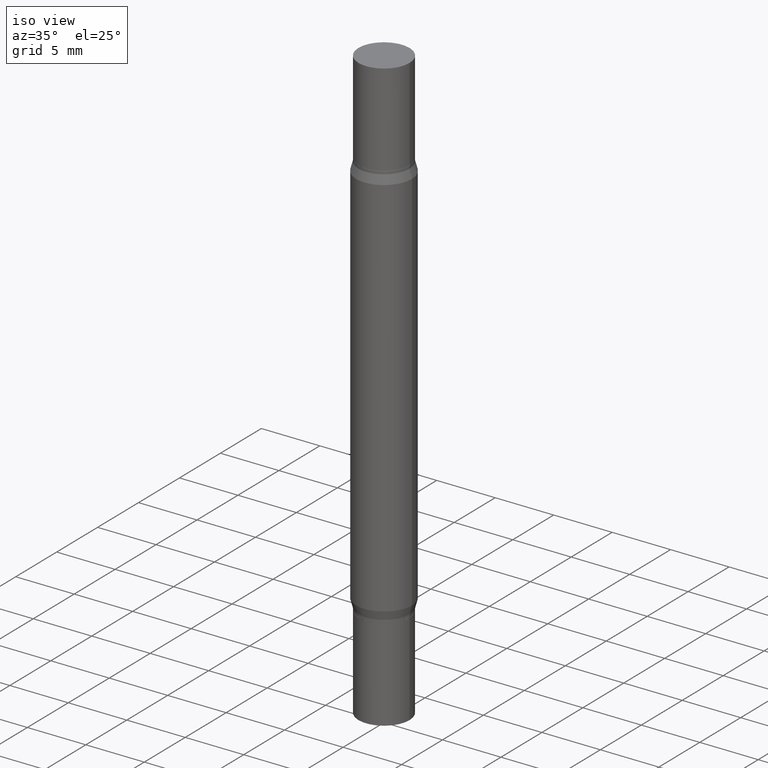
[diagram: clean part render]
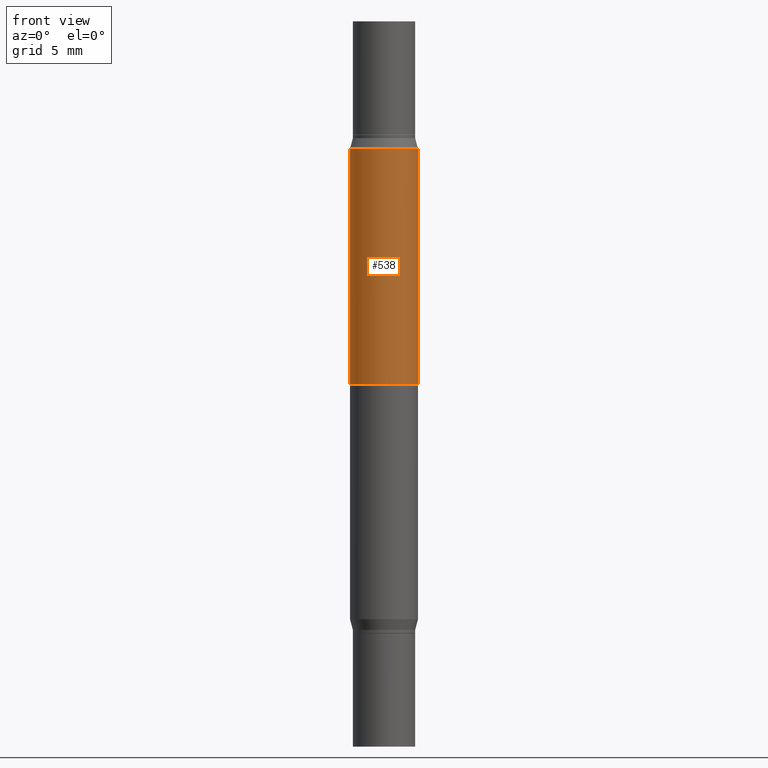
[diagram: tour spotlight — one face highlighted and labeled with its STEP entity id]
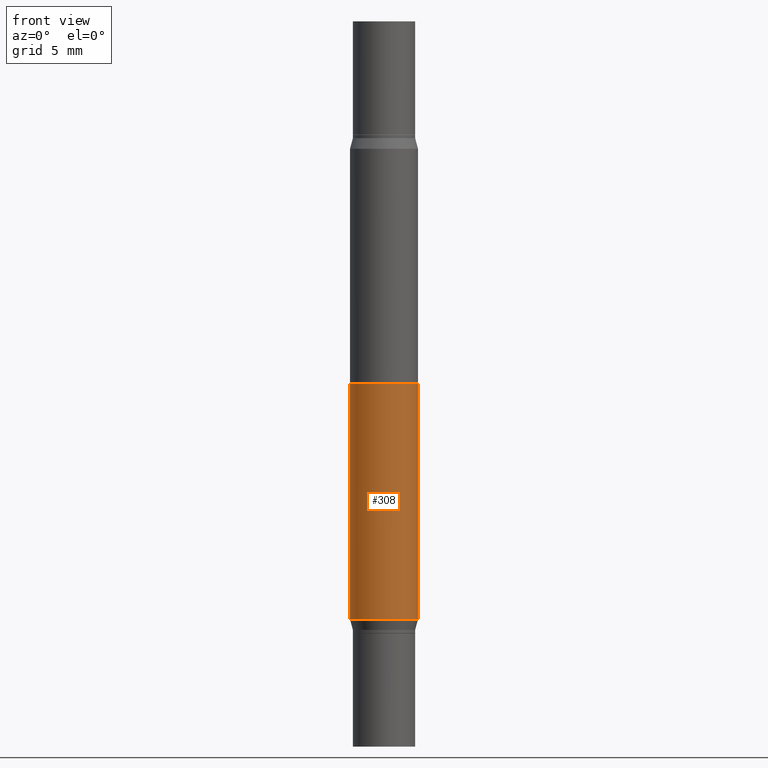
[diagram: tour spotlight — one face highlighted and labeled with its STEP entity id]
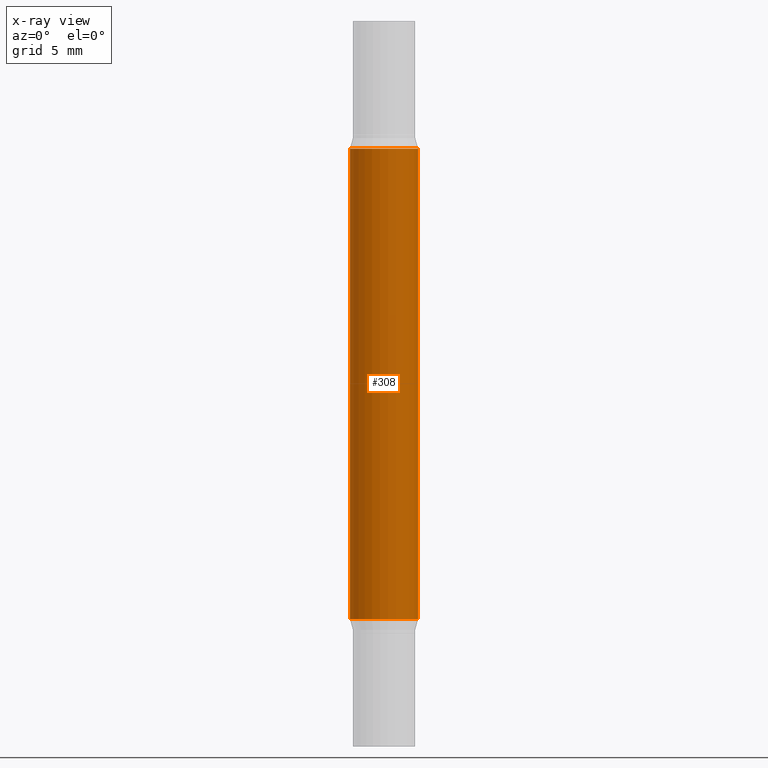
[diagram: x-ray of the same camera — body ghosted, this tour face saturated]
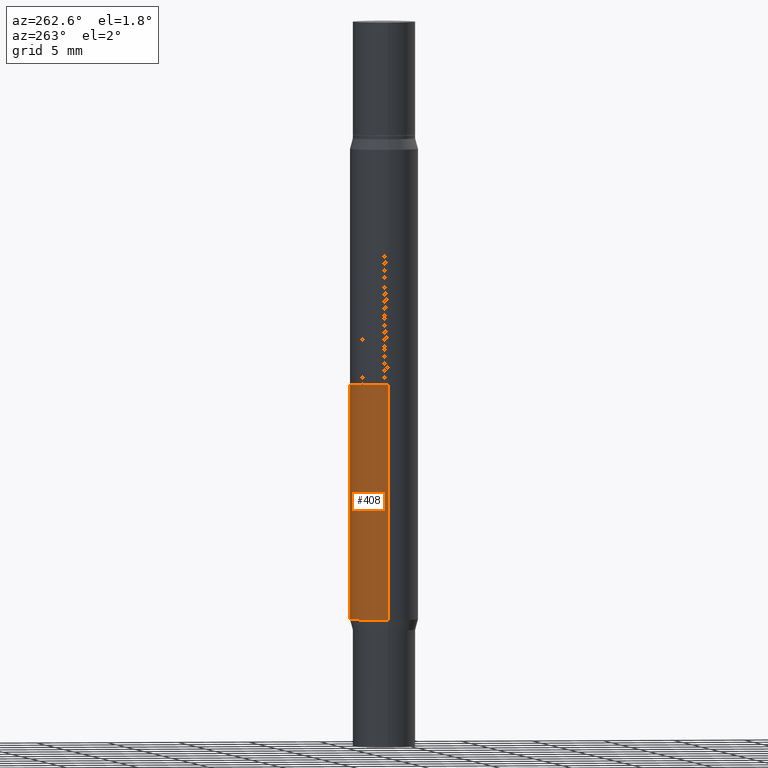
[diagram: tour spotlight — one face highlighted and labeled with its STEP entity id]
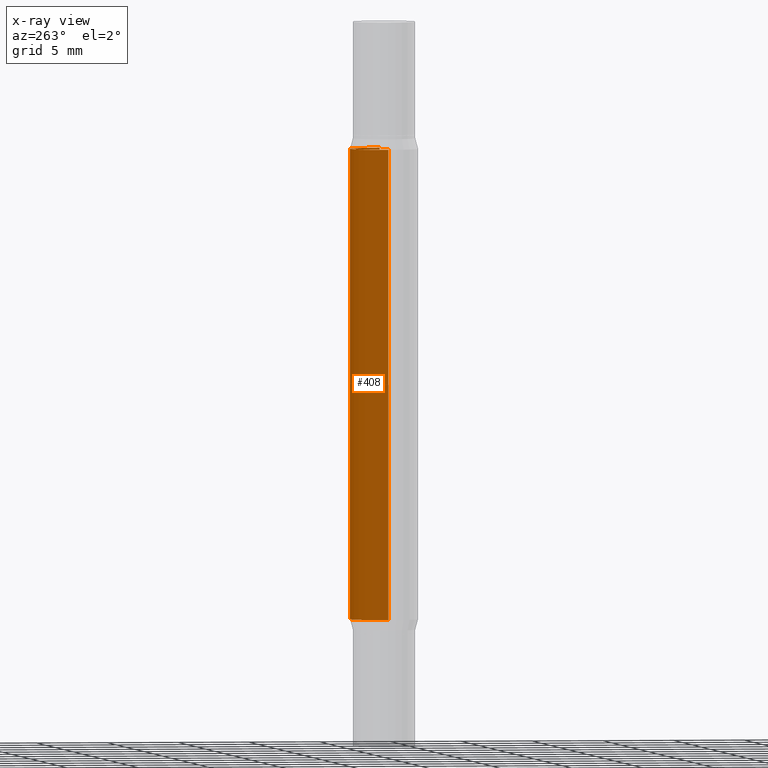
[diagram: x-ray of the same camera — body ghosted, this tour face saturated]
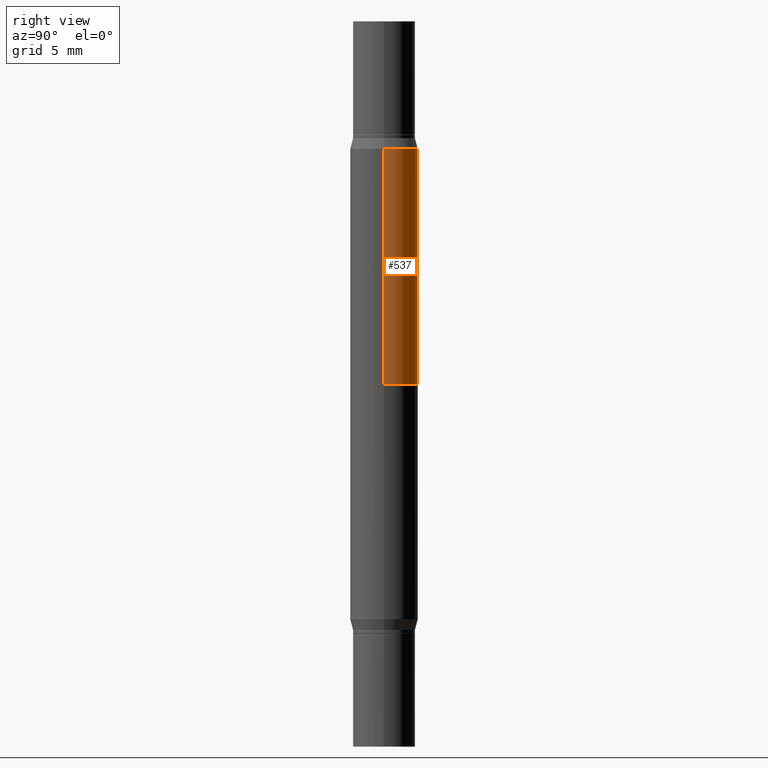
[diagram: tour spotlight — one face highlighted and labeled with its STEP entity id]
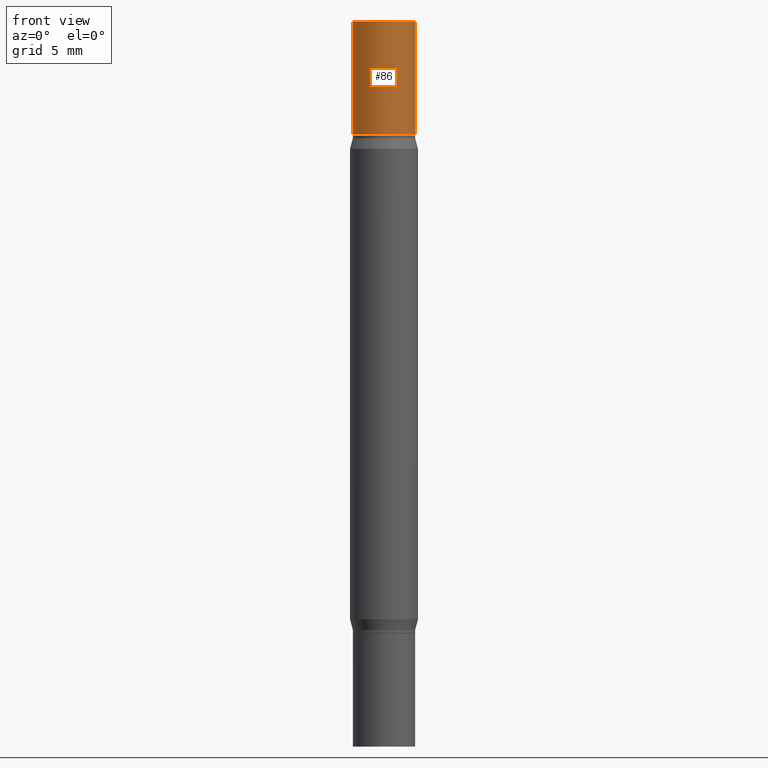
[diagram: tour spotlight — one face highlighted and labeled with its STEP entity id]
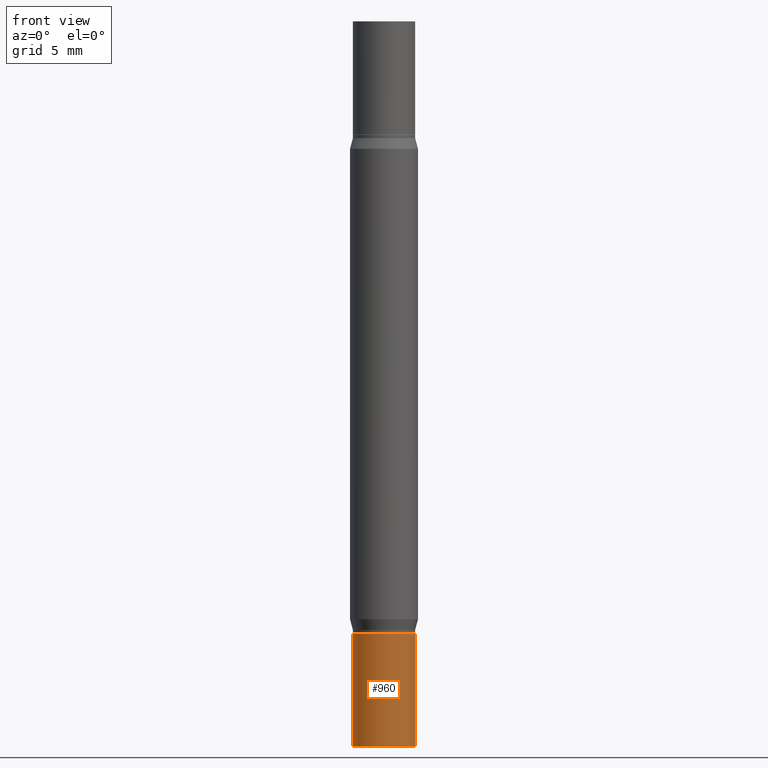
[diagram: tour spotlight — one face highlighted and labeled with its STEP entity id]
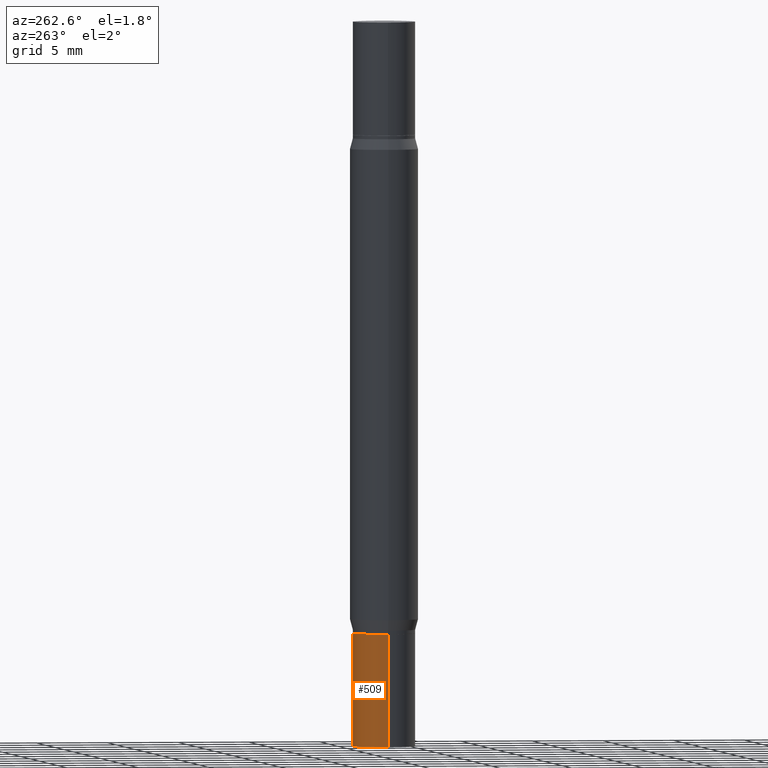
[diagram: tour spotlight — one face highlighted and labeled with its STEP entity id]
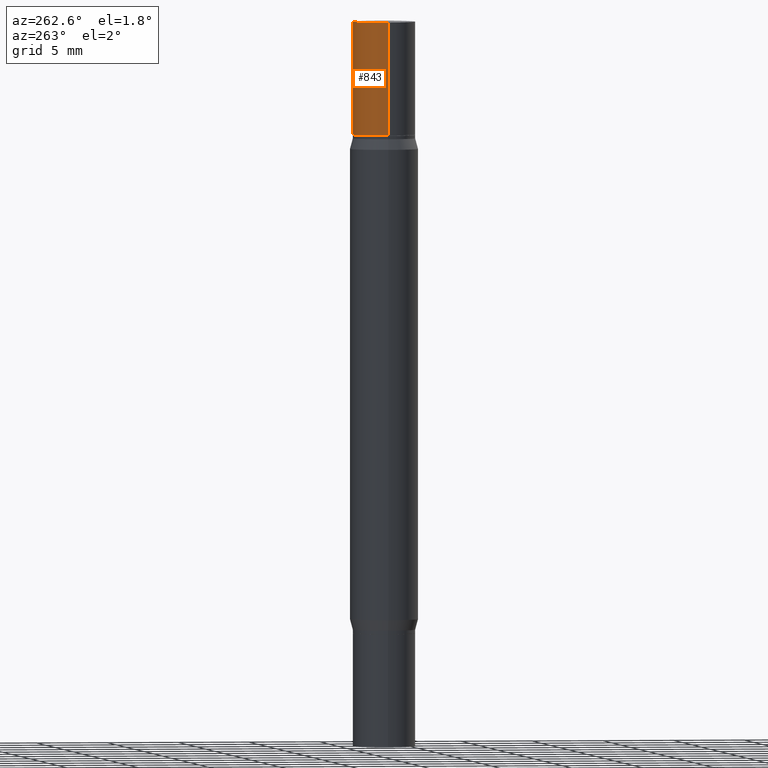
[diagram: tour spotlight — one face highlighted and labeled with its STEP entity id]
A machine part: a face-by-face anatomy tour. The part has 38 B-rep faces; the first image is the clean iso view, then the 8 largest visible faces are spotlighted one at a time (largest first), each with its STEP entity span.

Face 1 — front view, entity #538. In plain terms, the highlighted cylindrical surface (edge-blend (fillet) strip) has radius 2.3812 mm, axis along (-0, -0, -1).
Definition (entity closure, byte-faithful):
#9 = DIRECTION ( 'NONE',  ( 2.445468806185136597E-29, 3.491805094961124077E-15, 1.000000000000000000 ) ) ;
#27 = CYLINDRICAL_SURFACE ( 'NONE', #239, 0.09374999999999998612 ) ;
#81 = AXIS2_PLACEMENT_3D ( 'NONE', #282, #355, #948 ) ;
#85 = CARTESIAN_POINT ( 'NONE',  ( 4.032309068881200734E-29, -1.225683917850777370E-15, -0.3511099962990362200 ) ) ;
#99 = DIRECTION ( 'NONE',  ( -2.445468806185136597E-29, -3.491805094961124077E-15, -1.000000000000000000 ) ) ;
#106 = ORIENTED_EDGE ( 'NONE', *, *, #358, .F. ) ;
#160 = LINE ( 'NONE', #846, #919 ) ;
#174 = VERTEX_POINT ( 'NONE', #463 ) ;
#183 = VERTEX_POINT ( 'NONE', #312 ) ;
#234 = ORIENTED_EDGE ( 'NONE', *, *, #682, .F. ) ;
#239 = AXIS2_PLACEMENT_3D ( 'NONE', #701, #99, #611 ) ;
#263 = VERTEX_POINT ( 'NONE', #346 ) ;
#282 = CARTESIAN_POINT ( 'NONE',  ( 2.445468806185136317E-29, -3.491481338843145188E-15, -0.9999999999999998890 ) ) ;
#306 = AXIS2_PLACEMENT_3D ( 'NONE', #85, #9, #925 ) ;
#312 = CARTESIAN_POINT ( 'NONE',  ( 0.09374999999999998612, -3.013235379380048882E-15, -0.9999999999999998890 ) ) ;
#314 = DIRECTION ( 'NONE',  ( -2.445468806185136877E-29, -3.491805094961123683E-15, -1.000000000000000000 ) ) ;
#317 = DIRECTION ( 'NONE',  ( -2.445468806185136877E-29, -3.491805094961123683E-15, -1.000000000000000000 ) ) ;
#346 = CARTESIAN_POINT ( 'NONE',  ( -0.09374999999999998612, -1.715410941055880491E-15, -0.9999999999999998890 ) ) ;
#355 = DIRECTION ( 'NONE',  ( -0.000000000000000000, -3.491643216902134830E-15, -1.000000000000000000 ) ) ;
#358 = EDGE_CURVE ( 'NONE', #183, #263, #825, .T. ) ;
#463 = CARTESIAN_POINT ( 'NONE',  ( 0.09374999999999998612, -1.880336668883865465E-15, -0.3511099962990362200 ) ) ;
#527 = LINE ( 'NONE', #832, #628 ) ;
#538 = ADVANCED_FACE ( 'NONE', ( #685 ), #27, .T. ) ;
#565 = EDGE_LOOP ( 'NONE', ( #922, #576, #106, #234 ) ) ;
#576 = ORIENTED_EDGE ( 'NONE', *, *, #617, .T. ) ;
#611 = DIRECTION ( 'NONE',  ( 1.000000000000000000, -6.982962677686263555E-15, 0.000000000000000000 ) ) ;
#617 = EDGE_CURVE ( 'NONE', #941, #263, #527, .T. ) ;
#628 = VECTOR ( 'NONE', #317, 39.37007874015748143 ) ;
#640 = EDGE_CURVE ( 'NONE', #941, #174, #715, .T. ) ;
#682 = EDGE_CURVE ( 'NONE', #174, #183, #160, .T. ) ;
#685 = FACE_OUTER_BOUND ( 'NONE', #565, .T. ) ;
#701 = CARTESIAN_POINT ( 'NONE',  ( 0.000000000000000000, -6.983286433804268871E-15, -1.999999999999999778 ) ) ;
#715 = CIRCLE ( 'NONE', #306, 0.09374999999999998612 ) ;
#825 = CIRCLE ( 'NONE', #81, 0.09374999999999998612 ) ;
#829 = CARTESIAN_POINT ( 'NONE',  ( -0.09374999999999998612, -5.825122305596969759E-16, -0.3511099962990362200 ) ) ;
#832 = CARTESIAN_POINT ( 'NONE',  ( -0.09374999999999998612, -6.340114746513187787E-15, -1.999999999999999778 ) ) ;
#846 = CARTESIAN_POINT ( 'NONE',  ( 0.09374999999999998612, -7.637939184837356375E-15, -1.999999999999999778 ) ) ;
#919 = VECTOR ( 'NONE', #314, 39.37007874015748143 ) ;
#922 = ORIENTED_EDGE ( 'NONE', *, *, #640, .F. ) ;
#925 = DIRECTION ( 'NONE',  ( 1.000000000000000000, -6.982962677686266711E-15, 0.000000000000000000 ) ) ;
#941 = VERTEX_POINT ( 'NONE', #829 ) ;
#948 = DIRECTION ( 'NONE',  ( 0.000000000000000000, 1.000000000000000000, -2.913971193241881161E-15 ) ) ;

Face 2 — front view, entity #308. An x-ray twin of the same camera follows (body ghosted, this face saturated) — the face is partly hidden behind the body. In plain terms, the highlighted cylindrical surface (edge-blend (fillet) strip) has radius 2.3812 mm, axis along (-0, -0, -1).
Definition (entity closure, byte-faithful):
#38 = ORIENTED_EDGE ( 'NONE', *, *, #248, .F. ) ;
#40 = CYLINDRICAL_SURFACE ( 'NONE', #131, 0.09374999999999998612 ) ;
#131 = AXIS2_PLACEMENT_3D ( 'NONE', #630, #780, #185 ) ;
#146 = CIRCLE ( 'NONE', #273, 0.09374999999999998612 ) ;
#153 = EDGE_CURVE ( 'NONE', #870, #467, #503, .T. ) ;
#170 = LINE ( 'NONE', #605, #746 ) ;
#185 = DIRECTION ( 'NONE',  ( 1.000000000000000000, -6.982962677686263555E-15, 0.000000000000000000 ) ) ;
#200 = DIRECTION ( 'NONE',  ( 2.445468806185136597E-29, 3.491805094961124077E-15, 1.000000000000000000 ) ) ;
#213 = VERTEX_POINT ( 'NONE', #803 ) ;
#214 = LINE ( 'NONE', #588, #290 ) ;
#248 = EDGE_CURVE ( 'NONE', #855, #213, #146, .T. ) ;
#273 = AXIS2_PLACEMENT_3D ( 'NONE', #637, #200, #499 ) ;
#288 = ORIENTED_EDGE ( 'NONE', *, *, #683, .T. ) ;
#290 = VECTOR ( 'NONE', #819, 39.37007874015748143 ) ;
#308 = ADVANCED_FACE ( 'NONE', ( #577 ), #40, .T. ) ;
#410 = CARTESIAN_POINT ( 'NONE',  ( -0.09374999999999998612, -5.825122305596969759E-16, -0.3511099962990362200 ) ) ;
#467 = VERTEX_POINT ( 'NONE', #752 ) ;
#480 = EDGE_CURVE ( 'NONE', #213, #467, #214, .T. ) ;
#494 = ORIENTED_EDGE ( 'NONE', *, *, #480, .F. ) ;
#499 = DIRECTION ( 'NONE',  ( 1.000000000000000000, -6.982962677686266711E-15, 0.000000000000000000 ) ) ;
#503 = CIRCLE ( 'NONE', #823, 0.09374999999999998612 ) ;
#573 = CARTESIAN_POINT ( 'NONE',  ( 4.032309068881200734E-29, -5.757068677726919122E-15, -1.648890003700963502 ) ) ;
#577 = FACE_OUTER_BOUND ( 'NONE', #767, .T. ) ;
#588 = CARTESIAN_POINT ( 'NONE',  ( 0.09374999999999998612, -7.637939184837356375E-15, -1.999999999999999778 ) ) ;
#605 = CARTESIAN_POINT ( 'NONE',  ( -0.09374999999999998612, -6.340114746513187787E-15, -1.999999999999999778 ) ) ;
#630 = CARTESIAN_POINT ( 'NONE',  ( 0.000000000000000000, -6.983286433804268871E-15, -1.999999999999999778 ) ) ;
#637 = CARTESIAN_POINT ( 'NONE',  ( 4.032309068881200734E-29, -1.225683917850777370E-15, -0.3511099962990362200 ) ) ;
#657 = ORIENTED_EDGE ( 'NONE', *, *, #153, .T. ) ;
#683 = EDGE_CURVE ( 'NONE', #855, #870, #170, .T. ) ;
#699 = DIRECTION ( 'NONE',  ( 1.000000000000000000, -6.982962677686263555E-15, 0.000000000000000000 ) ) ;
#746 = VECTOR ( 'NONE', #916, 39.37007874015748143 ) ;
#752 = CARTESIAN_POINT ( 'NONE',  ( 0.09374999999999998612, -6.411721428760006626E-15, -1.648890003700963502 ) ) ;
#767 = EDGE_LOOP ( 'NONE', ( #38, #288, #657, #494 ) ) ;
#780 = DIRECTION ( 'NONE',  ( -2.445468806185136597E-29, -3.491805094961124077E-15, -1.000000000000000000 ) ) ;
#803 = CARTESIAN_POINT ( 'NONE',  ( 0.09374999999999998612, -1.880336668883865465E-15, -0.3511099962990362200 ) ) ;
#819 = DIRECTION ( 'NONE',  ( -2.445468806185136877E-29, -3.491805094961123683E-15, -1.000000000000000000 ) ) ;
#823 = AXIS2_PLACEMENT_3D ( 'NONE', #573, #879, #699 ) ;
#855 = VERTEX_POINT ( 'NONE', #410 ) ;
#870 = VERTEX_POINT ( 'NONE', #890 ) ;
#879 = DIRECTION ( 'NONE',  ( -2.445468806185136597E-29, 3.491481338843145583E-15, 1.000000000000000000 ) ) ;
#890 = CARTESIAN_POINT ( 'NONE',  ( -0.09374999999999998612, -2.848309651552064499E-15, -1.648890003700963502 ) ) ;
#916 = DIRECTION ( 'NONE',  ( -2.445468806185136877E-29, -3.491805094961123683E-15, -1.000000000000000000 ) ) ;

Face 3 — auxiliary view, entity #408. An x-ray twin of the same camera follows (body ghosted, this face saturated) — the face is partly hidden behind the body. In plain terms, the highlighted cylindrical surface (edge-blend (fillet) strip) has radius 2.3812 mm, axis along (-0, -0, -1).
Definition (entity closure, byte-faithful):
#24 = ORIENTED_EDGE ( 'NONE', *, *, #480, .T. ) ;
#62 = EDGE_LOOP ( 'NONE', ( #130, #740, #24, #295 ) ) ;
#63 = CARTESIAN_POINT ( 'NONE',  ( 0.000000000000000000, -6.983286433804268871E-15, -1.999999999999999778 ) ) ;
#93 = AXIS2_PLACEMENT_3D ( 'NONE', #722, #727, #514 ) ;
#130 = ORIENTED_EDGE ( 'NONE', *, *, #683, .F. ) ;
#142 = DIRECTION ( 'NONE',  ( 2.445468806185136597E-29, 3.491805094961124077E-15, 1.000000000000000000 ) ) ;
#161 = CIRCLE ( 'NONE', #471, 0.09374999999999998612 ) ;
#170 = LINE ( 'NONE', #605, #746 ) ;
#213 = VERTEX_POINT ( 'NONE', #803 ) ;
#214 = LINE ( 'NONE', #588, #290 ) ;
#254 = AXIS2_PLACEMENT_3D ( 'NONE', #63, #581, #658 ) ;
#290 = VECTOR ( 'NONE', #819, 39.37007874015748143 ) ;
#294 = DIRECTION ( 'NONE',  ( 1.000000000000000000, -6.982962677686266711E-15, 0.000000000000000000 ) ) ;
#295 = ORIENTED_EDGE ( 'NONE', *, *, #858, .T. ) ;
#408 = ADVANCED_FACE ( 'NONE', ( #891 ), #600, .T. ) ;
#410 = CARTESIAN_POINT ( 'NONE',  ( -0.09374999999999998612, -5.825122305596969759E-16, -0.3511099962990362200 ) ) ;
#466 = EDGE_CURVE ( 'NONE', #213, #855, #161, .T. ) ;
#467 = VERTEX_POINT ( 'NONE', #752 ) ;
#471 = AXIS2_PLACEMENT_3D ( 'NONE', #966, #142, #294 ) ;
#480 = EDGE_CURVE ( 'NONE', #213, #467, #214, .T. ) ;
#514 = DIRECTION ( 'NONE',  ( 1.000000000000000000, -6.982962677686263555E-15, 0.000000000000000000 ) ) ;
#520 = CIRCLE ( 'NONE', #93, 0.09374999999999998612 ) ;
#581 = DIRECTION ( 'NONE',  ( -2.445468806185136597E-29, -3.491805094961124077E-15, -1.000000000000000000 ) ) ;
#588 = CARTESIAN_POINT ( 'NONE',  ( 0.09374999999999998612, -7.637939184837356375E-15, -1.999999999999999778 ) ) ;
#600 = CYLINDRICAL_SURFACE ( 'NONE', #254, 0.09374999999999998612 ) ;
#605 = CARTESIAN_POINT ( 'NONE',  ( -0.09374999999999998612, -6.340114746513187787E-15, -1.999999999999999778 ) ) ;
#658 = DIRECTION ( 'NONE',  ( 1.000000000000000000, -6.982962677686263555E-15, 0.000000000000000000 ) ) ;
#683 = EDGE_CURVE ( 'NONE', #855, #870, #170, .T. ) ;
#722 = CARTESIAN_POINT ( 'NONE',  ( 4.032309068881200734E-29, -5.757068677726919122E-15, -1.648890003700963502 ) ) ;
#727 = DIRECTION ( 'NONE',  ( -2.445468806185136597E-29, 3.491481338843145583E-15, 1.000000000000000000 ) ) ;
#740 = ORIENTED_EDGE ( 'NONE', *, *, #466, .F. ) ;
#746 = VECTOR ( 'NONE', #916, 39.37007874015748143 ) ;
#752 = CARTESIAN_POINT ( 'NONE',  ( 0.09374999999999998612, -6.411721428760006626E-15, -1.648890003700963502 ) ) ;
#803 = CARTESIAN_POINT ( 'NONE',  ( 0.09374999999999998612, -1.880336668883865465E-15, -0.3511099962990362200 ) ) ;
#819 = DIRECTION ( 'NONE',  ( -2.445468806185136877E-29, -3.491805094961123683E-15, -1.000000000000000000 ) ) ;
#855 = VERTEX_POINT ( 'NONE', #410 ) ;
#858 = EDGE_CURVE ( 'NONE', #467, #870, #520, .T. ) ;
#870 = VERTEX_POINT ( 'NONE', #890 ) ;
#890 = CARTESIAN_POINT ( 'NONE',  ( -0.09374999999999998612, -2.848309651552064499E-15, -1.648890003700963502 ) ) ;
#891 = FACE_OUTER_BOUND ( 'NONE', #62, .T. ) ;
#916 = DIRECTION ( 'NONE',  ( -2.445468806185136877E-29, -3.491805094961123683E-15, -1.000000000000000000 ) ) ;
#966 = CARTESIAN_POINT ( 'NONE',  ( 4.032309068881200734E-29, -1.225683917850777370E-15, -0.3511099962990362200 ) ) ;

Face 4 — right view, entity #537. In plain terms, the highlighted cylindrical surface (edge-blend (fillet) strip) has radius 2.3812 mm, axis along (-0, -0, -1).
Definition (entity closure, byte-faithful):
#50 = EDGE_CURVE ( 'NONE', #263, #183, #469, .T. ) ;
#90 = DIRECTION ( 'NONE',  ( 1.000000000000000000, -6.982962677686263555E-15, 0.000000000000000000 ) ) ;
#116 = ORIENTED_EDGE ( 'NONE', *, *, #682, .T. ) ;
#157 = DIRECTION ( 'NONE',  ( -2.445468806185136597E-29, -3.491805094961124077E-15, -1.000000000000000000 ) ) ;
#160 = LINE ( 'NONE', #846, #919 ) ;
#169 = ORIENTED_EDGE ( 'NONE', *, *, #574, .F. ) ;
#174 = VERTEX_POINT ( 'NONE', #463 ) ;
#183 = VERTEX_POINT ( 'NONE', #312 ) ;
#201 = ORIENTED_EDGE ( 'NONE', *, *, #50, .F. ) ;
#263 = VERTEX_POINT ( 'NONE', #346 ) ;
#304 = CIRCLE ( 'NONE', #792, 0.09374999999999998612 ) ;
#312 = CARTESIAN_POINT ( 'NONE',  ( 0.09374999999999998612, -3.013235379380048882E-15, -0.9999999999999998890 ) ) ;
#314 = DIRECTION ( 'NONE',  ( -2.445468806185136877E-29, -3.491805094961123683E-15, -1.000000000000000000 ) ) ;
#317 = DIRECTION ( 'NONE',  ( -2.445468806185136877E-29, -3.491805094961123683E-15, -1.000000000000000000 ) ) ;
#327 = ORIENTED_EDGE ( 'NONE', *, *, #617, .F. ) ;
#330 = CARTESIAN_POINT ( 'NONE',  ( 4.032309068881200734E-29, -1.225683917850777370E-15, -0.3511099962990362200 ) ) ;
#346 = CARTESIAN_POINT ( 'NONE',  ( -0.09374999999999998612, -1.715410941055880491E-15, -0.9999999999999998890 ) ) ;
#402 = CYLINDRICAL_SURFACE ( 'NONE', #449, 0.09374999999999998612 ) ;
#403 = DIRECTION ( 'NONE',  ( 0.000000000000000000, 1.000000000000000000, -2.913971193241881161E-15 ) ) ;
#449 = AXIS2_PLACEMENT_3D ( 'NONE', #834, #157, #90 ) ;
#463 = CARTESIAN_POINT ( 'NONE',  ( 0.09374999999999998612, -1.880336668883865465E-15, -0.3511099962990362200 ) ) ;
#469 = CIRCLE ( 'NONE', #693, 0.09374999999999998612 ) ;
#527 = LINE ( 'NONE', #832, #628 ) ;
#537 = ADVANCED_FACE ( 'NONE', ( #773 ), #402, .T. ) ;
#574 = EDGE_CURVE ( 'NONE', #174, #941, #304, .T. ) ;
#617 = EDGE_CURVE ( 'NONE', #941, #263, #527, .T. ) ;
#628 = VECTOR ( 'NONE', #317, 39.37007874015748143 ) ;
#633 = DIRECTION ( 'NONE',  ( -0.000000000000000000, -3.491643216902134830E-15, -1.000000000000000000 ) ) ;
#682 = EDGE_CURVE ( 'NONE', #174, #183, #160, .T. ) ;
#693 = AXIS2_PLACEMENT_3D ( 'NONE', #847, #633, #403 ) ;
#773 = FACE_OUTER_BOUND ( 'NONE', #775, .T. ) ;
#775 = EDGE_LOOP ( 'NONE', ( #327, #169, #116, #201 ) ) ;
#792 = AXIS2_PLACEMENT_3D ( 'NONE', #330, #906, #920 ) ;
#829 = CARTESIAN_POINT ( 'NONE',  ( -0.09374999999999998612, -5.825122305596969759E-16, -0.3511099962990362200 ) ) ;
#832 = CARTESIAN_POINT ( 'NONE',  ( -0.09374999999999998612, -6.340114746513187787E-15, -1.999999999999999778 ) ) ;
#834 = CARTESIAN_POINT ( 'NONE',  ( 0.000000000000000000, -6.983286433804268871E-15, -1.999999999999999778 ) ) ;
#846 = CARTESIAN_POINT ( 'NONE',  ( 0.09374999999999998612, -7.637939184837356375E-15, -1.999999999999999778 ) ) ;
#847 = CARTESIAN_POINT ( 'NONE',  ( 2.445468806185136317E-29, -3.491481338843145188E-15, -0.9999999999999998890 ) ) ;
#906 = DIRECTION ( 'NONE',  ( 2.445468806185136597E-29, 3.491805094961124077E-15, 1.000000000000000000 ) ) ;
#919 = VECTOR ( 'NONE', #314, 39.37007874015748143 ) ;
#920 = DIRECTION ( 'NONE',  ( 1.000000000000000000, -6.982962677686266711E-15, 0.000000000000000000 ) ) ;
#941 = VERTEX_POINT ( 'NONE', #829 ) ;

Face 5 — front view, entity #86. In plain terms, the highlighted cylindrical surface (edge-blend (fillet) strip) has radius 2.1831 mm, axis along (-0, -0, -1).
Definition (entity closure, byte-faithful):
#25 = DIRECTION ( 'NONE',  ( 1.000000000000000000, -6.982962677686261977E-15, 0.000000000000000000 ) ) ;
#26 = VERTEX_POINT ( 'NONE', #776 ) ;
#42 = DIRECTION ( 'NONE',  ( 2.445468806185136597E-29, 3.491805094961124077E-15, 1.000000000000000000 ) ) ;
#44 = CARTESIAN_POINT ( 'NONE',  ( -0.08594999999999998475, 4.526196421250688572E-17, 2.731847993664282447E-16 ) ) ;
#82 = CIRCLE ( 'NONE', #491, 0.08594999999999998475 ) ;
#86 = ADVANCED_FACE ( 'NONE', ( #249 ), #323, .T. ) ;
#96 = DIRECTION ( 'NONE',  ( -2.445468806185136597E-29, -3.491805094961124077E-15, -1.000000000000000000 ) ) ;
#110 = AXIS2_PLACEMENT_3D ( 'NONE', #430, #786, #875 ) ;
#111 = DIRECTION ( 'NONE',  ( -2.445468806185136877E-29, -3.491805094961123683E-15, -1.000000000000000000 ) ) ;
#128 = CARTESIAN_POINT ( 'NONE',  ( -0.08594999999999998475, 4.526196421250688572E-17, -0.3119999999999995555 ) ) ;
#135 = ORIENTED_EDGE ( 'NONE', *, *, #717, .T. ) ;
#138 = EDGE_CURVE ( 'NONE', #280, #796, #281, .T. ) ;
#180 = DIRECTION ( 'NONE',  ( 1.000000000000000000, -6.982962677686268288E-15, 0.000000000000000000 ) ) ;
#189 = EDGE_CURVE ( 'NONE', #215, #26, #692, .T. ) ;
#196 = CARTESIAN_POINT ( 'NONE',  ( -0.08594999999999998475, -6.393626630895806321E-15, -1.999999999999999778 ) ) ;
#198 = CARTESIAN_POINT ( 'NONE',  ( 0.08594999999999998475, -5.998618860291546470E-16, 2.731847993664263218E-16 ) ) ;
#215 = VERTEX_POINT ( 'NONE', #198 ) ;
#220 = CIRCLE ( 'NONE', #110, 0.08594999999999998475 ) ;
#247 = EDGE_CURVE ( 'NONE', #280, #215, #220, .T. ) ;
#249 = FACE_OUTER_BOUND ( 'NONE', #483, .T. ) ;
#280 = VERTEX_POINT ( 'NONE', #44 ) ;
#281 = LINE ( 'NONE', #196, #411 ) ;
#293 = ORIENTED_EDGE ( 'NONE', *, *, #189, .F. ) ;
#323 = CYLINDRICAL_SURFACE ( 'NONE', #790, 0.08594999999999998475 ) ;
#344 = CARTESIAN_POINT ( 'NONE',  ( 0.08594999999999998475, -7.583472075951403886E-15, -1.999999999999999778 ) ) ;
#411 = VECTOR ( 'NONE', #495, 39.37007874015748143 ) ;
#430 = CARTESIAN_POINT ( 'NONE',  ( 4.890937612370273194E-29, 3.237561179798315247E-19, 2.731847993664263218E-16 ) ) ;
#483 = EDGE_LOOP ( 'NONE', ( #896, #958, #135, #293 ) ) ;
#491 = AXIS2_PLACEMENT_3D ( 'NONE', #636, #42, #180 ) ;
#495 = DIRECTION ( 'NONE',  ( -2.445468806185136877E-29, -3.491805094961123683E-15, -1.000000000000000000 ) ) ;
#624 = VECTOR ( 'NONE', #111, 39.37007874015748143 ) ;
#636 = CARTESIAN_POINT ( 'NONE',  ( 4.127951344840510809E-29, -1.089119433509891190E-15, -0.3119999999999995555 ) ) ;
#692 = LINE ( 'NONE', #344, #624 ) ;
#717 = EDGE_CURVE ( 'NONE', #796, #26, #82, .T. ) ;
#771 = CARTESIAN_POINT ( 'NONE',  ( 0.000000000000000000, -6.983286433804268871E-15, -1.999999999999999778 ) ) ;
#776 = CARTESIAN_POINT ( 'NONE',  ( 0.08594999999999998475, -1.689305075657025811E-15, -0.3119999999999995555 ) ) ;
#786 = DIRECTION ( 'NONE',  ( 2.445468806185136597E-29, 3.491805094961124077E-15, 1.000000000000000000 ) ) ;
#790 = AXIS2_PLACEMENT_3D ( 'NONE', #771, #96, #25 ) ;
#796 = VERTEX_POINT ( 'NONE', #128 ) ;
#875 = DIRECTION ( 'NONE',  ( 1.000000000000000000, -6.982962677686266711E-15, 0.000000000000000000 ) ) ;
#896 = ORIENTED_EDGE ( 'NONE', *, *, #247, .F. ) ;
#958 = ORIENTED_EDGE ( 'NONE', *, *, #138, .T. ) ;

Face 6 — front view, entity #960. In plain terms, the highlighted cylindrical surface (edge-blend (fillet) strip) has radius 2.1831 mm, axis along (-0, 0, 1).
Definition (entity closure, byte-faithful):
#13 = CARTESIAN_POINT ( 'NONE',  ( -0.08594999999999998475, -5.827580107440954061E-15, -1.688000000000000167 ) ) ;
#21 = VERTEX_POINT ( 'NONE', #34 ) ;
#34 = CARTESIAN_POINT ( 'NONE',  ( 0.08594999999999998475, -7.583148319833424603E-15, -2.000000000000000000 ) ) ;
#36 = CIRCLE ( 'NONE', #583, 0.08594999999999998475 ) ;
#51 = VECTOR ( 'NONE', #591, 39.37007874015748143 ) ;
#58 = ORIENTED_EDGE ( 'NONE', *, *, #748, .T. ) ;
#68 = CARTESIAN_POINT ( 'NONE',  ( 4.127951344840510809E-29, -5.893620499967230340E-15, -1.688000000000000167 ) ) ;
#112 = VERTEX_POINT ( 'NONE', #13 ) ;
#125 = LINE ( 'NONE', #784, #887 ) ;
#151 = DIRECTION ( 'NONE',  ( -2.445468806185136597E-29, 3.491481338843145583E-15, 1.000000000000000000 ) ) ;
#211 = LINE ( 'NONE', #287, #51 ) ;
#219 = EDGE_CURVE ( 'NONE', #404, #21, #448, .T. ) ;
#287 = CARTESIAN_POINT ( 'NONE',  ( -0.08594999999999998475, 6.107114813858060014E-16, -4.227824710074091590E-30 ) ) ;
#301 = VERTEX_POINT ( 'NONE', #337 ) ;
#337 = CARTESIAN_POINT ( 'NONE',  ( 0.08594999999999998475, -6.493806142114363777E-15, -1.688000000000000167 ) ) ;
#354 = DIRECTION ( 'NONE',  ( -2.445468806185136597E-29, 3.491481338843145583E-15, 1.000000000000000000 ) ) ;
#371 = CARTESIAN_POINT ( 'NONE',  ( -0.08594999999999998475, -5.827580107440954061E-15, -2.000000000000000000 ) ) ;
#374 = CYLINDRICAL_SURFACE ( 'NONE', #677, 0.08594999999999998475 ) ;
#404 = VERTEX_POINT ( 'NONE', #371 ) ;
#420 = EDGE_LOOP ( 'NONE', ( #841, #427, #58, #664 ) ) ;
#423 = DIRECTION ( 'NONE',  ( -2.445468806185136877E-29, 3.491481338843145188E-15, 1.000000000000000000 ) ) ;
#427 = ORIENTED_EDGE ( 'NONE', *, *, #219, .T. ) ;
#448 = CIRCLE ( 'NONE', #835, 0.08594999999999998475 ) ;
#452 = FACE_OUTER_BOUND ( 'NONE', #420, .T. ) ;
#458 = EDGE_CURVE ( 'NONE', #112, #301, #36, .T. ) ;
#498 = EDGE_CURVE ( 'NONE', #404, #112, #211, .T. ) ;
#518 = CARTESIAN_POINT ( 'NONE',  ( 4.890937612370273194E-29, -6.982962677686291165E-15, -2.000000000000000000 ) ) ;
#583 = AXIS2_PLACEMENT_3D ( 'NONE', #68, #889, #830 ) ;
#591 = DIRECTION ( 'NONE',  ( -2.445468806185136877E-29, 3.491481338843145188E-15, 1.000000000000000000 ) ) ;
#664 = ORIENTED_EDGE ( 'NONE', *, *, #458, .F. ) ;
#677 = AXIS2_PLACEMENT_3D ( 'NONE', #751, #354, #814 ) ;
#748 = EDGE_CURVE ( 'NONE', #21, #301, #125, .T. ) ;
#751 = CARTESIAN_POINT ( 'NONE',  ( 0.000000000000000000, 0.000000000000000000, 0.000000000000000000 ) ) ;
#784 = CARTESIAN_POINT ( 'NONE',  ( 0.08594999999999998475, -6.001856421471345220E-16, 4.191073938796606539E-30 ) ) ;
#814 = DIRECTION ( 'NONE',  ( 1.000000000000000000, -6.982962677686266711E-15, 4.876176775795936353E-29 ) ) ;
#830 = DIRECTION ( 'NONE',  ( 1.000000000000000000, -6.982962677686261977E-15, 0.000000000000000000 ) ) ;
#835 = AXIS2_PLACEMENT_3D ( 'NONE', #518, #151, #903 ) ;
#841 = ORIENTED_EDGE ( 'NONE', *, *, #498, .F. ) ;
#887 = VECTOR ( 'NONE', #423, 39.37007874015748143 ) ;
#889 = DIRECTION ( 'NONE',  ( -2.445468806185136597E-29, 3.491481338843145583E-15, 1.000000000000000000 ) ) ;
#903 = DIRECTION ( 'NONE',  ( 1.000000000000000000, -6.982962677686261977E-15, 0.000000000000000000 ) ) ;
#960 = ADVANCED_FACE ( 'NONE', ( #452 ), #374, .T. ) ;

Face 7 — auxiliary view, entity #509. In plain terms, the highlighted cylindrical surface (edge-blend (fillet) strip) has radius 2.1831 mm, axis along (-0, 0, 1).
Definition (entity closure, byte-faithful):
#13 = CARTESIAN_POINT ( 'NONE',  ( -0.08594999999999998475, -5.827580107440954061E-15, -1.688000000000000167 ) ) ;
#21 = VERTEX_POINT ( 'NONE', #34 ) ;
#34 = CARTESIAN_POINT ( 'NONE',  ( 0.08594999999999998475, -7.583148319833424603E-15, -2.000000000000000000 ) ) ;
#51 = VECTOR ( 'NONE', #591, 39.37007874015748143 ) ;
#57 = CARTESIAN_POINT ( 'NONE',  ( 4.890937612370273194E-29, -6.982962677686291165E-15, -2.000000000000000000 ) ) ;
#112 = VERTEX_POINT ( 'NONE', #13 ) ;
#125 = LINE ( 'NONE', #784, #887 ) ;
#143 = FACE_OUTER_BOUND ( 'NONE', #720, .T. ) ;
#211 = LINE ( 'NONE', #287, #51 ) ;
#285 = EDGE_CURVE ( 'NONE', #301, #112, #393, .T. ) ;
#287 = CARTESIAN_POINT ( 'NONE',  ( -0.08594999999999998475, 6.107114813858060014E-16, -4.227824710074091590E-30 ) ) ;
#301 = VERTEX_POINT ( 'NONE', #337 ) ;
#337 = CARTESIAN_POINT ( 'NONE',  ( 0.08594999999999998475, -6.493806142114363777E-15, -1.688000000000000167 ) ) ;
#343 = DIRECTION ( 'NONE',  ( -2.445468806185136597E-29, 3.491481338843145583E-15, 1.000000000000000000 ) ) ;
#371 = CARTESIAN_POINT ( 'NONE',  ( -0.08594999999999998475, -5.827580107440954061E-15, -2.000000000000000000 ) ) ;
#393 = CIRCLE ( 'NONE', #949, 0.08594999999999998475 ) ;
#404 = VERTEX_POINT ( 'NONE', #371 ) ;
#423 = DIRECTION ( 'NONE',  ( -2.445468806185136877E-29, 3.491481338843145188E-15, 1.000000000000000000 ) ) ;
#426 = ORIENTED_EDGE ( 'NONE', *, *, #498, .T. ) ;
#446 = CYLINDRICAL_SURFACE ( 'NONE', #596, 0.08594999999999998475 ) ;
#473 = AXIS2_PLACEMENT_3D ( 'NONE', #57, #822, #507 ) ;
#481 = CARTESIAN_POINT ( 'NONE',  ( 4.127951344840510809E-29, -5.893620499967230340E-15, -1.688000000000000167 ) ) ;
#498 = EDGE_CURVE ( 'NONE', #404, #112, #211, .T. ) ;
#501 = ORIENTED_EDGE ( 'NONE', *, *, #285, .F. ) ;
#507 = DIRECTION ( 'NONE',  ( 1.000000000000000000, -6.982962677686261977E-15, 0.000000000000000000 ) ) ;
#509 = ADVANCED_FACE ( 'NONE', ( #143 ), #446, .T. ) ;
#515 = DIRECTION ( 'NONE',  ( -2.445468806185136597E-29, 3.491481338843145583E-15, 1.000000000000000000 ) ) ;
#587 = ORIENTED_EDGE ( 'NONE', *, *, #921, .T. ) ;
#591 = DIRECTION ( 'NONE',  ( -2.445468806185136877E-29, 3.491481338843145188E-15, 1.000000000000000000 ) ) ;
#596 = AXIS2_PLACEMENT_3D ( 'NONE', #976, #515, #824 ) ;
#720 = EDGE_LOOP ( 'NONE', ( #587, #426, #501, #860 ) ) ;
#729 = CIRCLE ( 'NONE', #473, 0.08594999999999998475 ) ;
#748 = EDGE_CURVE ( 'NONE', #21, #301, #125, .T. ) ;
#784 = CARTESIAN_POINT ( 'NONE',  ( 0.08594999999999998475, -6.001856421471345220E-16, 4.191073938796606539E-30 ) ) ;
#822 = DIRECTION ( 'NONE',  ( -2.445468806185136597E-29, 3.491481338843145583E-15, 1.000000000000000000 ) ) ;
#824 = DIRECTION ( 'NONE',  ( 1.000000000000000000, -6.982962677686266711E-15, 4.876176775795936353E-29 ) ) ;
#859 = DIRECTION ( 'NONE',  ( 1.000000000000000000, -6.982962677686261977E-15, 0.000000000000000000 ) ) ;
#860 = ORIENTED_EDGE ( 'NONE', *, *, #748, .F. ) ;
#887 = VECTOR ( 'NONE', #423, 39.37007874015748143 ) ;
#921 = EDGE_CURVE ( 'NONE', #21, #404, #729, .T. ) ;
#949 = AXIS2_PLACEMENT_3D ( 'NONE', #481, #343, #859 ) ;
#976 = CARTESIAN_POINT ( 'NONE',  ( 0.000000000000000000, 0.000000000000000000, 0.000000000000000000 ) ) ;

Face 8 — auxiliary view, entity #843. In plain terms, the highlighted cylindrical surface (edge-blend (fillet) strip) has radius 2.1831 mm, axis along (-0, -0, -1).
Definition (entity closure, byte-faithful):
#12 = DIRECTION ( 'NONE',  ( 1.000000000000000000, -6.982962677686268288E-15, 0.000000000000000000 ) ) ;
#26 = VERTEX_POINT ( 'NONE', #776 ) ;
#29 = ORIENTED_EDGE ( 'NONE', *, *, #138, .F. ) ;
#37 = CIRCLE ( 'NONE', #291, 0.08594999999999998475 ) ;
#44 = CARTESIAN_POINT ( 'NONE',  ( -0.08594999999999998475, 4.526196421250688572E-17, 2.731847993664282447E-16 ) ) ;
#107 = DIRECTION ( 'NONE',  ( -2.445468806185136597E-29, -3.491805094961124077E-15, -1.000000000000000000 ) ) ;
#111 = DIRECTION ( 'NONE',  ( -2.445468806185136877E-29, -3.491805094961123683E-15, -1.000000000000000000 ) ) ;
#128 = CARTESIAN_POINT ( 'NONE',  ( -0.08594999999999998475, 4.526196421250688572E-17, -0.3119999999999995555 ) ) ;
#132 = CIRCLE ( 'NONE', #318, 0.08594999999999998475 ) ;
#138 = EDGE_CURVE ( 'NONE', #280, #796, #281, .T. ) ;
#175 = CARTESIAN_POINT ( 'NONE',  ( 0.000000000000000000, -6.983286433804268871E-15, -1.999999999999999778 ) ) ;
#189 = EDGE_CURVE ( 'NONE', #215, #26, #692, .T. ) ;
#196 = CARTESIAN_POINT ( 'NONE',  ( -0.08594999999999998475, -6.393626630895806321E-15, -1.999999999999999778 ) ) ;
#198 = CARTESIAN_POINT ( 'NONE',  ( 0.08594999999999998475, -5.998618860291546470E-16, 2.731847993664263218E-16 ) ) ;
#215 = VERTEX_POINT ( 'NONE', #198 ) ;
#280 = VERTEX_POINT ( 'NONE', #44 ) ;
#281 = LINE ( 'NONE', #196, #411 ) ;
#291 = AXIS2_PLACEMENT_3D ( 'NONE', #468, #768, #12 ) ;
#318 = AXIS2_PLACEMENT_3D ( 'NONE', #564, #555, #647 ) ;
#328 = EDGE_CURVE ( 'NONE', #215, #280, #132, .T. ) ;
#344 = CARTESIAN_POINT ( 'NONE',  ( 0.08594999999999998475, -7.583472075951403886E-15, -1.999999999999999778 ) ) ;
#411 = VECTOR ( 'NONE', #495, 39.37007874015748143 ) ;
#416 = FACE_OUTER_BOUND ( 'NONE', #631, .T. ) ;
#468 = CARTESIAN_POINT ( 'NONE',  ( 4.127951344840510809E-29, -1.089119433509891190E-15, -0.3119999999999995555 ) ) ;
#495 = DIRECTION ( 'NONE',  ( -2.445468806185136877E-29, -3.491805094961123683E-15, -1.000000000000000000 ) ) ;
#555 = DIRECTION ( 'NONE',  ( 2.445468806185136597E-29, 3.491805094961124077E-15, 1.000000000000000000 ) ) ;
#564 = CARTESIAN_POINT ( 'NONE',  ( 4.890937612370273194E-29, 3.237561179798315247E-19, 2.731847993664263218E-16 ) ) ;
#624 = VECTOR ( 'NONE', #111, 39.37007874015748143 ) ;
#631 = EDGE_LOOP ( 'NONE', ( #29, #939, #818, #826 ) ) ;
#639 = CYLINDRICAL_SURFACE ( 'NONE', #955, 0.08594999999999998475 ) ;
#647 = DIRECTION ( 'NONE',  ( 1.000000000000000000, -6.982962677686266711E-15, 0.000000000000000000 ) ) ;
#671 = EDGE_CURVE ( 'NONE', #26, #796, #37, .T. ) ;
#692 = LINE ( 'NONE', #344, #624 ) ;
#768 = DIRECTION ( 'NONE',  ( 2.445468806185136597E-29, 3.491805094961124077E-15, 1.000000000000000000 ) ) ;
#776 = CARTESIAN_POINT ( 'NONE',  ( 0.08594999999999998475, -1.689305075657025811E-15, -0.3119999999999995555 ) ) ;
#796 = VERTEX_POINT ( 'NONE', #128 ) ;
#818 = ORIENTED_EDGE ( 'NONE', *, *, #189, .T. ) ;
#826 = ORIENTED_EDGE ( 'NONE', *, *, #671, .T. ) ;
#843 = ADVANCED_FACE ( 'NONE', ( #416 ), #639, .T. ) ;
#856 = DIRECTION ( 'NONE',  ( 1.000000000000000000, -6.982962677686261977E-15, 0.000000000000000000 ) ) ;
#939 = ORIENTED_EDGE ( 'NONE', *, *, #328, .F. ) ;
#955 = AXIS2_PLACEMENT_3D ( 'NONE', #175, #107, #856 ) ;